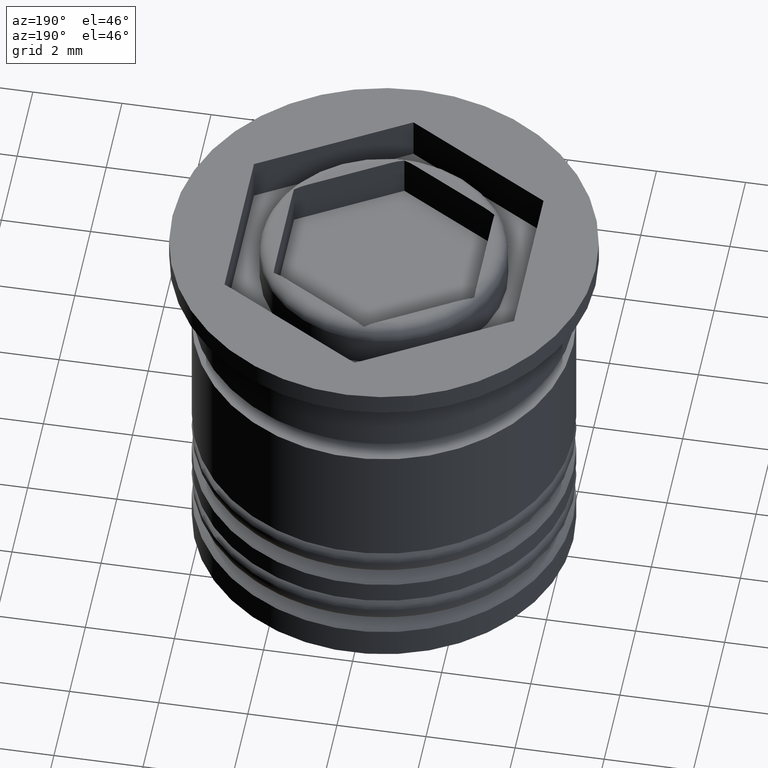
[diagram: clean part render]
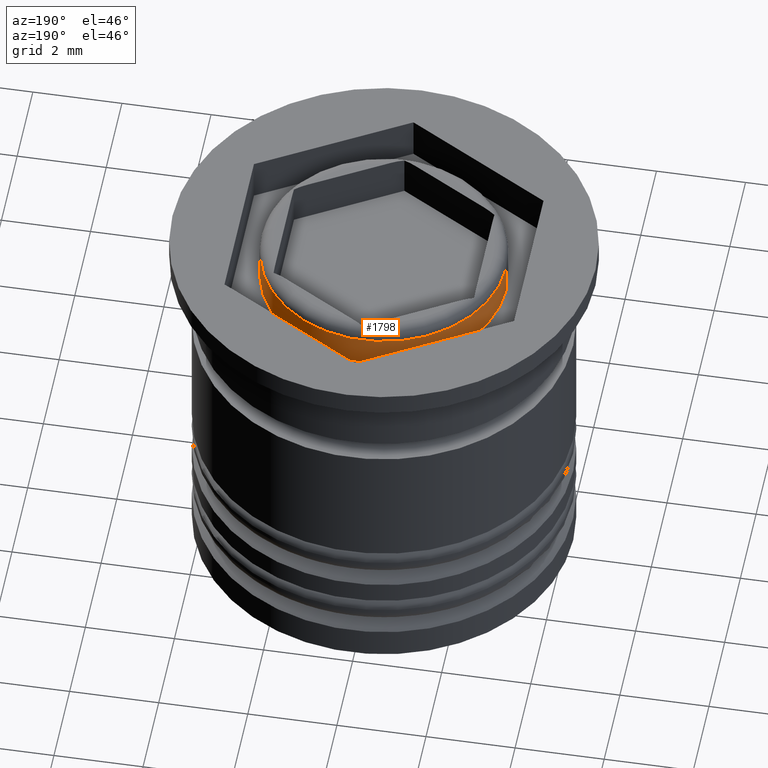
[diagram: same view with one face highlighted and labeled with its STEP entity id]
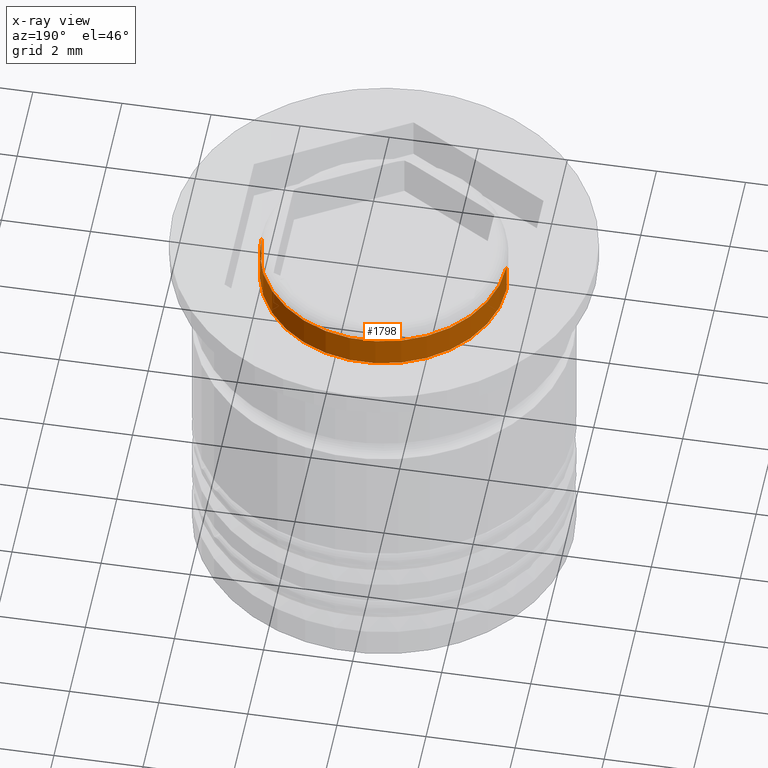
[diagram: x-ray of the same camera — body ghosted, the highlighted face saturated]
A machine part, auxiliary view. The second image highlights one B-rep face of the part: STEP entity #1798.
The next image is the same camera in x-ray: the body ghosted, the highlighted face saturated — about 0% of this face is hidden behind the body in this view.
In plain terms, the highlighted cylindrical surface (partial cylindrical patch) has radius 2.75 mm, axis along (-0, -0, 1).
Its self-contained STEP definition (entity closure, byte-faithful):
#29 = CIRCLE ( 'NONE', #494, 2.750000000000000000 ) ;
#41 = DIRECTION ( 'NONE',  ( 0.000000000000000000, 0.000000000000000000, -1.000000000000000000 ) ) ;
#54 = CYLINDRICAL_SURFACE ( 'NONE', #1707, 2.750000000000000000 ) ;
#167 = CARTESIAN_POINT ( 'NONE',  ( -2.750000000000000000, 3.367778697655221012E-16, -1.000000000000000000 ) ) ;
#251 = ORIENTED_EDGE ( 'NONE', *, *, #1483, .T. ) ;
#269 = CARTESIAN_POINT ( 'NONE',  ( 2.750000000000000000, 0.000000000000000000, -0.2999999999999999334 ) ) ;
#365 = DIRECTION ( 'NONE',  ( -0.000000000000000000, -0.000000000000000000, 1.000000000000000000 ) ) ;
#475 = LINE ( 'NONE', #1109, #1057 ) ;
#494 = AXIS2_PLACEMENT_3D ( 'NONE', #1314, #1035, #528 ) ;
#517 = CARTESIAN_POINT ( 'NONE',  ( 0.000000000000000000, 0.000000000000000000, -1.000000000000000000 ) ) ;
#528 = DIRECTION ( 'NONE',  ( 1.000000000000000000, 0.000000000000000000, 0.000000000000000000 ) ) ;
#562 = DIRECTION ( 'NONE',  ( -0.000000000000000000, -0.000000000000000000, 1.000000000000000000 ) ) ;
#697 = LINE ( 'NONE', #1957, #1636 ) ;
#706 = ORIENTED_EDGE ( 'NONE', *, *, #1650, .T. ) ;
#847 = DIRECTION ( 'NONE',  ( 1.000000000000000000, 0.000000000000000000, 0.000000000000000000 ) ) ;
#879 = CARTESIAN_POINT ( 'NONE',  ( 0.000000000000000000, 0.000000000000000000, -0.2999999999999999334 ) ) ;
#895 = AXIS2_PLACEMENT_3D ( 'NONE', #879, #41, #847 ) ;
#1009 = DIRECTION ( 'NONE',  ( 1.000000000000000000, 0.000000000000000000, 0.000000000000000000 ) ) ;
#1035 = DIRECTION ( 'NONE',  ( -0.000000000000000000, 0.000000000000000000, 1.000000000000000000 ) ) ;
#1053 = ORIENTED_EDGE ( 'NONE', *, *, #1553, .F. ) ;
#1057 = VECTOR ( 'NONE', #1729, 1000.000000000000000 ) ;
#1096 = EDGE_CURVE ( 'NONE', #1102, #1332, #29, .T. ) ;
#1102 = VERTEX_POINT ( 'NONE', #1616 ) ;
#1109 = CARTESIAN_POINT ( 'NONE',  ( -2.750000000000000000, 3.367778697655221012E-16, -1.000000000000000000 ) ) ;
#1120 = EDGE_LOOP ( 'NONE', ( #1359, #251, #706, #1053 ) ) ;
#1314 = CARTESIAN_POINT ( 'NONE',  ( 0.000000000000000000, 0.000000000000000000, -1.000000000000000000 ) ) ;
#1332 = VERTEX_POINT ( 'NONE', #167 ) ;
#1359 = ORIENTED_EDGE ( 'NONE', *, *, #1096, .T. ) ;
#1413 = VERTEX_POINT ( 'NONE', #1635 ) ;
#1483 = EDGE_CURVE ( 'NONE', #1332, #1413, #475, .T. ) ;
#1553 = EDGE_CURVE ( 'NONE', #1102, #1578, #697, .T. ) ;
#1578 = VERTEX_POINT ( 'NONE', #269 ) ;
#1616 = CARTESIAN_POINT ( 'NONE',  ( 2.750000000000000000, 0.000000000000000000, -1.000000000000000000 ) ) ;
#1635 = CARTESIAN_POINT ( 'NONE',  ( -2.750000000000000000, 3.367778697655221012E-16, -0.2999999999999999334 ) ) ;
#1636 = VECTOR ( 'NONE', #562, 1000.000000000000000 ) ;
#1650 = EDGE_CURVE ( 'NONE', #1413, #1578, #1909, .T. ) ;
#1707 = AXIS2_PLACEMENT_3D ( 'NONE', #517, #365, #1009 ) ;
#1729 = DIRECTION ( 'NONE',  ( -0.000000000000000000, -0.000000000000000000, 1.000000000000000000 ) ) ;
#1743 = FACE_OUTER_BOUND ( 'NONE', #1120, .T. ) ;
#1798 = ADVANCED_FACE ( 'NONE', ( #1743 ), #54, .T. ) ;
#1909 = CIRCLE ( 'NONE', #895, 2.750000000000000000 ) ;
#1957 = CARTESIAN_POINT ( 'NONE',  ( 2.750000000000000000, 0.000000000000000000, -1.000000000000000000 ) ) ;